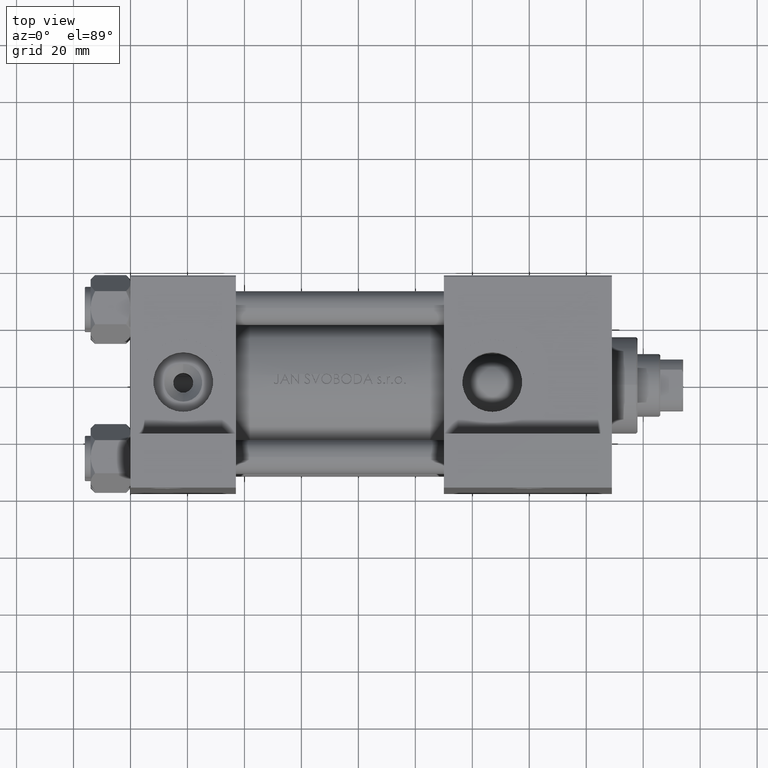
[diagram: clean part render]
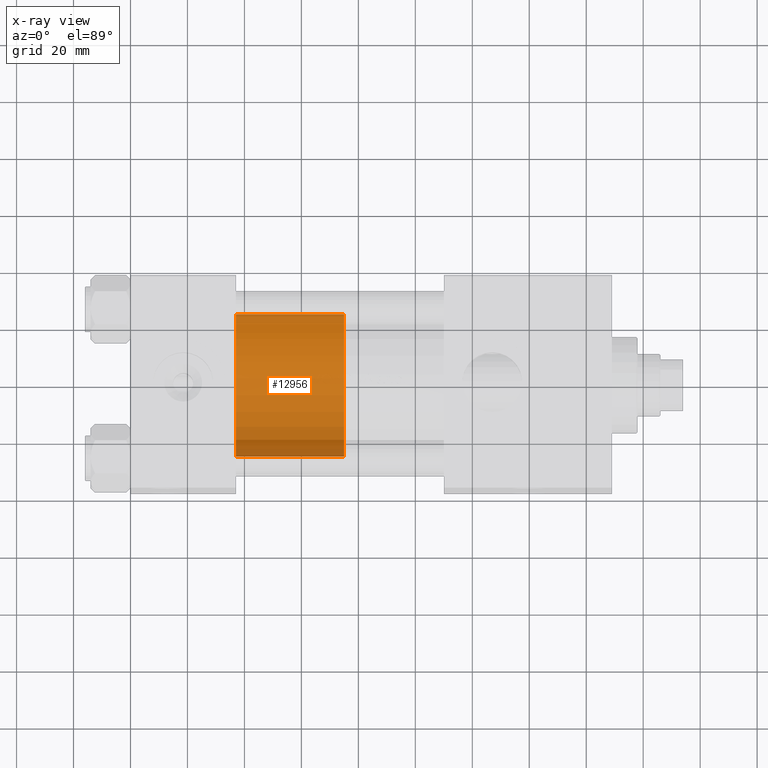
[diagram: x-ray — body ghosted, one internal face saturated and labeled with its STEP entity id]
A machine part, top view, then the same camera in x-ray: the body is ghosted and one INTERNAL B-rep face — a face not visible from any outside direction — is saturated and labeled: STEP entity #12956.
In plain terms, the highlighted cylindrical surface (partial cylindrical patch) has radius 25 mm, axis along (-1, 0, 0).
Its self-contained STEP definition (entity closure, byte-faithful):
#1331 = EDGE_CURVE ( 'NONE', #42853, #29615, #31986, .T. ) ;
#4689 = CARTESIAN_POINT ( 'NONE',  ( -25.00000000000000000, 0.000000000000000000, 38.00000000000000000 ) ) ;
#5124 = DIRECTION ( 'NONE',  ( -0.000000000000000000, -0.000000000000000000, -1.000000000000000000 ) ) ;
#5615 = DIRECTION ( 'NONE',  ( 0.000000000000000000, 0.000000000000000000, 1.000000000000000000 ) ) ;
#5767 = DIRECTION ( 'NONE',  ( 1.000000000000000000, 0.000000000000000000, 0.000000000000000000 ) ) ;
#6935 = DIRECTION ( 'NONE',  ( 0.000000000000000000, 0.000000000000000000, 1.000000000000000000 ) ) ;
#8861 = CARTESIAN_POINT ( 'NONE',  ( 0.000000000000000000, 0.000000000000000000, 38.00000000000000000 ) ) ;
#8863 = CIRCLE ( 'NONE', #41469, 25.00000000000000000 ) ;
#11785 = CIRCLE ( 'NONE', #18124, 25.00000000000000000 ) ;
#12506 = EDGE_CURVE ( 'NONE', #29025, #41498, #13744, .T. ) ;
#12956 = ADVANCED_FACE ( 'NONE', ( #42733 ), #42979, .T. ) ;
#13744 = LINE ( 'NONE', #47873, #18397 ) ;
#14806 = ORIENTED_EDGE ( 'NONE', *, *, #12506, .T. ) ;
#16772 = ORIENTED_EDGE ( 'NONE', *, *, #1331, .F. ) ;
#18124 = AXIS2_PLACEMENT_3D ( 'NONE', #24526, #5615, #46958 ) ;
#18397 = VECTOR ( 'NONE', #40144, 1000.000000000000000 ) ;
#20926 = CARTESIAN_POINT ( 'NONE',  ( 0.000000000000000000, 0.000000000000000000, 0.000000000000000000 ) ) ;
#24526 = CARTESIAN_POINT ( 'NONE',  ( 0.000000000000000000, 0.000000000000000000, 38.00000000000000000 ) ) ;
#26313 = ORIENTED_EDGE ( 'NONE', *, *, #35688, .F. ) ;
#29025 = VERTEX_POINT ( 'NONE', #32005 ) ;
#29615 = VERTEX_POINT ( 'NONE', #38431 ) ;
#30122 = ORIENTED_EDGE ( 'NONE', *, *, #46746, .T. ) ;
#31986 = LINE ( 'NONE', #42706, #39604 ) ;
#32005 = CARTESIAN_POINT ( 'NONE',  ( 25.00000000000000000, 3.061616997868383043E-15, 38.00000000000000000 ) ) ;
#35688 = EDGE_CURVE ( 'NONE', #29025, #42853, #11785, .T. ) ;
#38431 = CARTESIAN_POINT ( 'NONE',  ( -25.00000000000000000, 0.000000000000000000, 0.000000000000000000 ) ) ;
#39068 = AXIS2_PLACEMENT_3D ( 'NONE', #8861, #5124, #42492 ) ;
#39604 = VECTOR ( 'NONE', #46678, 1000.000000000000000 ) ;
#40144 = DIRECTION ( 'NONE',  ( -0.000000000000000000, -0.000000000000000000, -1.000000000000000000 ) ) ;
#41469 = AXIS2_PLACEMENT_3D ( 'NONE', #20926, #6935, #5767 ) ;
#41498 = VERTEX_POINT ( 'NONE', #49208 ) ;
#42492 = DIRECTION ( 'NONE',  ( -1.000000000000000000, 0.000000000000000000, 0.000000000000000000 ) ) ;
#42706 = CARTESIAN_POINT ( 'NONE',  ( -25.00000000000000000, 0.000000000000000000, 38.00000000000000000 ) ) ;
#42733 = FACE_OUTER_BOUND ( 'NONE', #43125, .T. ) ;
#42853 = VERTEX_POINT ( 'NONE', #4689 ) ;
#42979 = CYLINDRICAL_SURFACE ( 'NONE', #39068, 25.00000000000000000 ) ;
#43125 = EDGE_LOOP ( 'NONE', ( #26313, #14806, #30122, #16772 ) ) ;
#46678 = DIRECTION ( 'NONE',  ( -0.000000000000000000, -0.000000000000000000, -1.000000000000000000 ) ) ;
#46746 = EDGE_CURVE ( 'NONE', #41498, #29615, #8863, .T. ) ;
#46958 = DIRECTION ( 'NONE',  ( 1.000000000000000000, 0.000000000000000000, 0.000000000000000000 ) ) ;
#47873 = CARTESIAN_POINT ( 'NONE',  ( 25.00000000000000000, 3.061616997868383043E-15, 38.00000000000000000 ) ) ;
#49208 = CARTESIAN_POINT ( 'NONE',  ( 25.00000000000000000, 3.061616997868383043E-15, 0.000000000000000000 ) ) ;